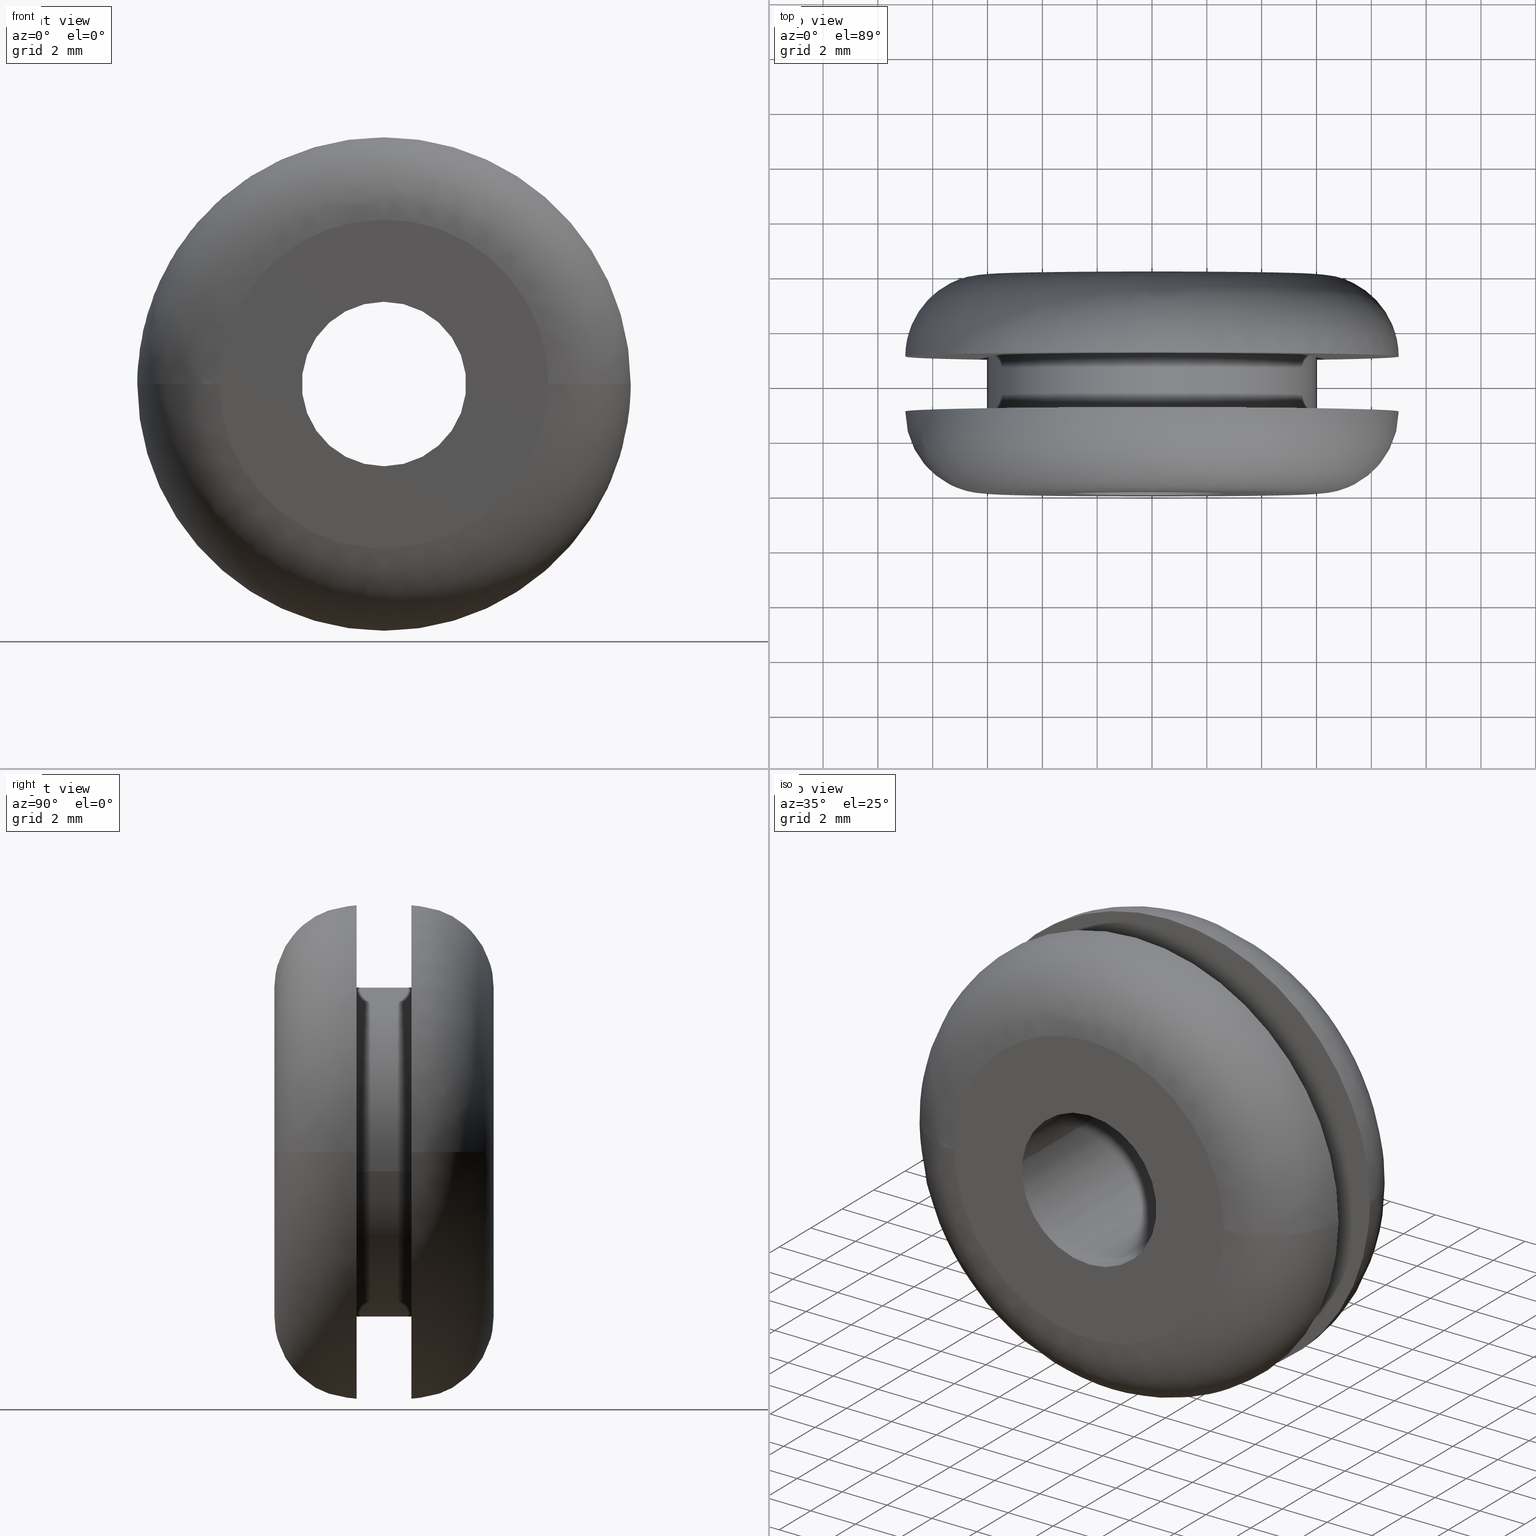
[diagram: canonical four-view strip — front | top / right | iso, engineering-drawing reading convention]
A machine part, canonical four-view strip (front | top / right | iso — engineering-drawing reading convention). The complete STEP part file that produces these views, byte-faithful:
ISO-10303-21;
HEADER;

FILE_DESCRIPTION( (''), '2;1');
FILE_NAME ('PC50.12492.TM_B_6_2_CRUL_3319.stp','2019-12-19T13:36:55',(''),(''),'spGate 15.6.1','','');

FILE_SCHEMA (('AUTOMOTIVE_DESIGN'));
ENDSEC;

DATA;
#10=(GEOMETRIC_REPRESENTATION_CONTEXT(3) GLOBAL_UNCERTAINTY_ASSIGNED_CONTEXT((#11)) GLOBAL_UNIT_ASSIGNED_CONTEXT((#12,#13,#14)) REPRESENTATION_CONTEXT('ID1','3D'));
#11=UNCERTAINTY_MEASURE_WITH_UNIT(LENGTH_MEASURE(0.01),#15,'DISTANCE_ACCURACY_VALUE','Maximum model space distance between geometric entities at asserted connectivities');
#12=(NAMED_UNIT(*) SI_UNIT($,.STERADIAN.) SOLID_ANGLE_UNIT());
#13=(CONVERSION_BASED_UNIT('DEGREE',#16) NAMED_UNIT(#17) PLANE_ANGLE_UNIT());
#14=(LENGTH_UNIT() NAMED_UNIT(*) SI_UNIT(.MILLI.,.METRE.));
#15=(LENGTH_UNIT() NAMED_UNIT(*) SI_UNIT(.MILLI.,.METRE.));
#16=PLANE_ANGLE_MEASURE_WITH_UNIT(PLANE_ANGLE_MEASURE(0.01745329252),#18);
#17=DIMENSIONAL_EXPONENTS(0.0,0.0,0.0,0.0,0.0,0.0,0.0);
#18=(NAMED_UNIT(*) PLANE_ANGLE_UNIT() SI_UNIT($,.RADIAN.));
#19=MANIFOLD_SOLID_BREP('TM_B_6_2',#31);
#20=ADVANCED_BREP_SHAPE_REPRESENTATION('',(#19),#10);
#21=APPLICATION_CONTEXT('');
#22=APPLICATION_PROTOCOL_DEFINITION('International Standard','automotive_design',1999,#21);
#23=PRODUCT_DEFINITION_CONTEXT('',#21,'design');
#24=PRODUCT_CONTEXT('',#21,'mechanical');
#25=PRODUCT('','','',(#24));
#26=PRODUCT_DEFINITION_FORMATION_WITH_SPECIFIED_SOURCE('','',#25,.NOT_KNOWN.);
#27=PRODUCT_RELATED_PRODUCT_CATEGORY('tool','tool',(#25));
#28=PRODUCT_DEFINITION('','',#26,#23);
#29=PRODUCT_DEFINITION_SHAPE('','',#28);
#30=SHAPE_DEFINITION_REPRESENTATION(#29,#20);
#31=CLOSED_SHELL('',(#40,#41,#42,#43,#44,#45,#46,#47,#48,#49,#50,#51));
#32=COLOUR_RGB('',0.00000000000E+000,0.00000000000E+000,0.00000000000E+000);
#33=FILL_AREA_STYLE_COLOUR('',#32);
#34=FILL_AREA_STYLE('',(#33));
#35=SURFACE_STYLE_FILL_AREA(#34);
#36=SURFACE_SIDE_STYLE('',(#35));
#37=SURFACE_STYLE_USAGE(.BOTH.,#36);
#38=PRESENTATION_STYLE_ASSIGNMENT((#37));
#39=STYLED_ITEM('',(#38),#19);
#40=ADVANCED_FACE('',(#53,#54),#52,.F.);
#41=ADVANCED_FACE('',(#64,#65),#63,.F.);
#42=ADVANCED_FACE('',(#75,#76),#74,.F.);
#43=ADVANCED_FACE('',(#86,#87),#85,.F.);
#44=ADVANCED_FACE('',(#97),#96,.T.);
#45=ADVANCED_FACE('',(#107),#106,.T.);
#46=ADVANCED_FACE('',(#117),#116,.F.);
#47=ADVANCED_FACE('',(#127),#126,.F.);
#48=ADVANCED_FACE('',(#137),#136,.T.);
#49=ADVANCED_FACE('',(#147),#146,.T.);
#50=ADVANCED_FACE('',(#157),#156,.T.);
#51=ADVANCED_FACE('',(#167),#166,.T.);
#52=PLANE('',#179);
#53=FACE_OUTER_BOUND('',#180,.T.);
#54=FACE_BOUND('',#181,.T.);
#55=COLOUR_RGB('',1.00000000000E+000,1.00000000000E+000,1.00000000000E+000);
#56=FILL_AREA_STYLE_COLOUR('',#55);
#57=FILL_AREA_STYLE('',(#56));
#58=SURFACE_STYLE_FILL_AREA(#57);
#59=SURFACE_SIDE_STYLE('',(#58));
#60=SURFACE_STYLE_USAGE(.BOTH.,#59);
#61=PRESENTATION_STYLE_ASSIGNMENT((#60));
#62=STYLED_ITEM('',(#61),#40);
#63=PLANE('',#185);
#64=FACE_OUTER_BOUND('',#186,.T.);
#65=FACE_BOUND('',#187,.T.);
#66=COLOUR_RGB('',1.00000000000E+000,1.00000000000E+000,1.00000000000E+000);
#67=FILL_AREA_STYLE_COLOUR('',#66);
#68=FILL_AREA_STYLE('',(#67));
#69=SURFACE_STYLE_FILL_AREA(#68);
#70=SURFACE_SIDE_STYLE('',(#69));
#71=SURFACE_STYLE_USAGE(.BOTH.,#70);
#72=PRESENTATION_STYLE_ASSIGNMENT((#71));
#73=STYLED_ITEM('',(#72),#41);
#74=PLANE('',#191);
#75=FACE_OUTER_BOUND('',#192,.T.);
#76=FACE_BOUND('',#193,.T.);
#77=COLOUR_RGB('',1.00000000000E+000,1.00000000000E+000,1.00000000000E+000);
#78=FILL_AREA_STYLE_COLOUR('',#77);
#79=FILL_AREA_STYLE('',(#78));
#80=SURFACE_STYLE_FILL_AREA(#79);
#81=SURFACE_SIDE_STYLE('',(#80));
#82=SURFACE_STYLE_USAGE(.BOTH.,#81);
#83=PRESENTATION_STYLE_ASSIGNMENT((#82));
#84=STYLED_ITEM('',(#83),#42);
#85=PLANE('',#197);
#86=FACE_OUTER_BOUND('',#198,.T.);
#87=FACE_BOUND('',#199,.T.);
#88=COLOUR_RGB('',1.00000000000E+000,1.00000000000E+000,1.00000000000E+000);
#89=FILL_AREA_STYLE_COLOUR('',#88);
#90=FILL_AREA_STYLE('',(#89));
#91=SURFACE_STYLE_FILL_AREA(#90);
#92=SURFACE_SIDE_STYLE('',(#91));
#93=SURFACE_STYLE_USAGE(.BOTH.,#92);
#94=PRESENTATION_STYLE_ASSIGNMENT((#93));
#95=STYLED_ITEM('',(#94),#43);
#96=CYLINDRICAL_SURFACE('',#203,6.00000000000E+000);
#97=FACE_OUTER_BOUND('',#204,.T.);
#98=COLOUR_RGB('',1.00000000000E+000,1.00000000000E+000,1.00000000000E+000);
#99=FILL_AREA_STYLE_COLOUR('',#98);
#100=FILL_AREA_STYLE('',(#99));
#101=SURFACE_STYLE_FILL_AREA(#100);
#102=SURFACE_SIDE_STYLE('',(#101));
#103=SURFACE_STYLE_USAGE(.BOTH.,#102);
#104=PRESENTATION_STYLE_ASSIGNMENT((#103));
#105=STYLED_ITEM('',(#104),#44);
#106=CYLINDRICAL_SURFACE('',#208,6.00000000000E+000);
#107=FACE_OUTER_BOUND('',#209,.T.);
#108=COLOUR_RGB('',1.00000000000E+000,1.00000000000E+000,1.00000000000E+000);
#109=FILL_AREA_STYLE_COLOUR('',#108);
#110=FILL_AREA_STYLE('',(#109));
#111=SURFACE_STYLE_FILL_AREA(#110);
#112=SURFACE_SIDE_STYLE('',(#111));
#113=SURFACE_STYLE_USAGE(.BOTH.,#112);
#114=PRESENTATION_STYLE_ASSIGNMENT((#113));
#115=STYLED_ITEM('',(#114),#45);
#116=CYLINDRICAL_SURFACE('',#213,3.00000000000E+000);
#117=FACE_OUTER_BOUND('',#214,.T.);
#118=COLOUR_RGB('',1.00000000000E+000,1.00000000000E+000,1.00000000000E+000);
#119=FILL_AREA_STYLE_COLOUR('',#118);
#120=FILL_AREA_STYLE('',(#119));
#121=SURFACE_STYLE_FILL_AREA(#120);
#122=SURFACE_SIDE_STYLE('',(#121));
#123=SURFACE_STYLE_USAGE(.BOTH.,#122);
#124=PRESENTATION_STYLE_ASSIGNMENT((#123));
#125=STYLED_ITEM('',(#124),#46);
#126=CYLINDRICAL_SURFACE('',#218,3.00000000000E+000);
#127=FACE_OUTER_BOUND('',#219,.T.);
#128=COLOUR_RGB('',1.00000000000E+000,1.00000000000E+000,1.00000000000E+000);
#129=FILL_AREA_STYLE_COLOUR('',#128);
#130=FILL_AREA_STYLE('',(#129));
#131=SURFACE_STYLE_FILL_AREA(#130);
#132=SURFACE_SIDE_STYLE('',(#131));
#133=SURFACE_STYLE_USAGE(.BOTH.,#132);
#134=PRESENTATION_STYLE_ASSIGNMENT((#133));
#135=STYLED_ITEM('',(#134),#47);
#136=( BOUNDED_SURFACE() B_SPLINE_SURFACE( 2,2,((#220,#221,#222,#223,#224),(#225,#226,#227,#228,#229),(#230,#231,#232,#233,#234),(#235,#236,#237,#238,#239),(#240,#241,#242,#243,#244)), .UNSPECIFIED.,.F.,.F.,.F.) B_SPLINE_SURFACE_WITH_KNOTS((3,2,3),(3,2,3),(-2.33173204921E-004,1.04711982679E+000,1.57079638809E+000),(0.00000000000E+000,1.57079632679E+000,3.14159265359E+000), .UNSPECIFIED. ) GEOMETRIC_REPRESENTATION_ITEM() RATIONAL_B_SPLINE_SURFACE(((1.00000000000E+000,7.07106781187E-001,1.00000000000E+000,7.07106781187E-001,1.00000000000E+000),(8.65986538968E-001,6.12344954120E-001,8.65986538968E-001,6.12344954120E-001,8.65986538968E-001),(1.00000000000E+000,7.07106781187E-001,1.00000000000E+000,7.07106781187E-001,1.00000000000E+000),(9.32993261640E-001,6.59725862107E-001,9.32993261640E-001,6.59725862107E-001,9.32993261640E-001),(9.32993269484E-001,6.59725867653E-001,9.32993269484E-001,6.59725867653E-001,9.32993269484E-001))) REPRESENTATION_ITEM('') SURFACE() );
#137=FACE_OUTER_BOUND('',#245,.T.);
#138=COLOUR_RGB('',1.00000000000E+000,1.00000000000E+000,1.00000000000E+000);
#139=FILL_AREA_STYLE_COLOUR('',#138);
#140=FILL_AREA_STYLE('',(#139));
#141=SURFACE_STYLE_FILL_AREA(#140);
#142=SURFACE_SIDE_STYLE('',(#141));
#143=SURFACE_STYLE_USAGE(.BOTH.,#142);
#144=PRESENTATION_STYLE_ASSIGNMENT((#143));
#145=STYLED_ITEM('',(#144),#48);
#146=( BOUNDED_SURFACE() B_SPLINE_SURFACE( 2,2,((#246,#247,#248,#249,#250),(#251,#252,#253,#254,#255),(#256,#257,#258,#259,#260),(#261,#262,#263,#264,#265),(#266,#267,#268,#269,#270)), .UNSPECIFIED.,.F.,.F.,.F.) B_SPLINE_SURFACE_WITH_KNOTS((3,2,3),(3,2,3),(-2.33173204921E-004,1.04711982679E+000,1.57079651069E+000),(3.14159265359E+000,4.71238898038E+000,6.28318530718E+000), .UNSPECIFIED. ) GEOMETRIC_REPRESENTATION_ITEM() RATIONAL_B_SPLINE_SURFACE(((1.00000000000E+000,7.07106781187E-001,1.00000000000E+000,7.07106781187E-001,1.00000000000E+000),(8.65986538968E-001,6.12344954120E-001,8.65986538968E-001,6.12344954120E-001,8.65986538968E-001),(1.00000000000E+000,7.07106781187E-001,1.00000000000E+000,7.07106781187E-001,1.00000000000E+000),(9.32993245953E-001,6.59725851015E-001,9.32993245953E-001,6.59725851015E-001,9.32993245953E-001),(9.32993269484E-001,6.59725867653E-001,9.32993269484E-001,6.59725867653E-001,9.32993269484E-001))) REPRESENTATION_ITEM('') SURFACE() );
#147=FACE_OUTER_BOUND('',#271,.T.);
#148=COLOUR_RGB('',1.00000000000E+000,1.00000000000E+000,1.00000000000E+000);
#149=FILL_AREA_STYLE_COLOUR('',#148);
#150=FILL_AREA_STYLE('',(#149));
#151=SURFACE_STYLE_FILL_AREA(#150);
#152=SURFACE_SIDE_STYLE('',(#151));
#153=SURFACE_STYLE_USAGE(.BOTH.,#152);
#154=PRESENTATION_STYLE_ASSIGNMENT((#153));
#155=STYLED_ITEM('',(#154),#49);
#156=( BOUNDED_SURFACE() B_SPLINE_SURFACE( 2,2,((#272,#273,#274,#275,#276),(#277,#278,#279,#280,#281),(#282,#283,#284,#285,#286),(#287,#288,#289,#290,#291),(#292,#293,#294,#295,#296)), .UNSPECIFIED.,.F.,.F.,.F.) B_SPLINE_SURFACE_WITH_KNOTS((3,2,3),(3,2,3),(-1.57079651073E+000,-1.04709932886E+000,2.94667014920E-004),(0.00000000000E+000,1.57079632679E+000,3.14159265359E+000), .UNSPECIFIED. ) GEOMETRIC_REPRESENTATION_ITEM() RATIONAL_B_SPLINE_SURFACE(((9.32988144219E-001,6.59722243544E-001,9.32988144219E-001,6.59722243544E-001,9.32988144219E-001),(9.32988120683E-001,6.59722226901E-001,9.32988120683E-001,6.59722226901E-001,9.32988120683E-001),(1.00000000000E+000,7.07106781187E-001,1.00000000000E+000,7.07106781187E-001,1.00000000000E+000),(8.65976288438E-001,6.12337705901E-001,8.65976288438E-001,6.12337705901E-001,8.65976288438E-001),(1.00000000000E+000,7.07106781187E-001,1.00000000000E+000,7.07106781187E-001,1.00000000000E+000))) REPRESENTATION_ITEM('') SURFACE() );
#157=FACE_OUTER_BOUND('',#297,.T.);
#158=COLOUR_RGB('',1.00000000000E+000,1.00000000000E+000,1.00000000000E+000);
#159=FILL_AREA_STYLE_COLOUR('',#158);
#160=FILL_AREA_STYLE('',(#159));
#161=SURFACE_STYLE_FILL_AREA(#160);
#162=SURFACE_SIDE_STYLE('',(#161));
#163=SURFACE_STYLE_USAGE(.BOTH.,#162);
#164=PRESENTATION_STYLE_ASSIGNMENT((#163));
#165=STYLED_ITEM('',(#164),#50);
#166=( BOUNDED_SURFACE() B_SPLINE_SURFACE( 2,2,((#298,#299,#300,#301,#302),(#303,#304,#305,#306,#307),(#308,#309,#310,#311,#312),(#313,#314,#315,#316,#317),(#318,#319,#320,#321,#322)), .UNSPECIFIED.,.F.,.F.,.F.) B_SPLINE_SURFACE_WITH_KNOTS((3,2,3),(3,2,3),(-1.57079651073E+000,-1.04709932886E+000,2.94667014920E-004),(3.14159265359E+000,4.71238898038E+000,6.28318530718E+000), .UNSPECIFIED. ) GEOMETRIC_REPRESENTATION_ITEM() RATIONAL_B_SPLINE_SURFACE(((9.32988144219E-001,6.59722243544E-001,9.32988144219E-001,6.59722243544E-001,9.32988144219E-001),(9.32988120683E-001,6.59722226901E-001,9.32988120683E-001,6.59722226901E-001,9.32988120683E-001),(1.00000000000E+000,7.07106781187E-001,1.00000000000E+000,7.07106781187E-001,1.00000000000E+000),(8.65976288438E-001,6.12337705901E-001,8.65976288438E-001,6.12337705901E-001,8.65976288438E-001),(1.00000000000E+000,7.07106781187E-001,1.00000000000E+000,7.07106781187E-001,1.00000000000E+000))) REPRESENTATION_ITEM('') SURFACE() );
#167=FACE_OUTER_BOUND('',#323,.T.);
#168=COLOUR_RGB('',1.00000000000E+000,1.00000000000E+000,1.00000000000E+000);
#169=FILL_AREA_STYLE_COLOUR('',#168);
#170=FILL_AREA_STYLE('',(#169));
#171=SURFACE_STYLE_FILL_AREA(#170);
#172=SURFACE_SIDE_STYLE('',(#171));
#173=SURFACE_STYLE_USAGE(.BOTH.,#172);
#174=PRESENTATION_STYLE_ASSIGNMENT((#173));
#175=STYLED_ITEM('',(#174),#51);
#176=CARTESIAN_POINT('',(-1.09106769926E+001,5.00000000000E+000,-1.08000000000E+001));
#177=DIRECTION('',(0.00000000000E+000,1.00000000000E+000,0.00000000000E+000));
#178=DIRECTION('',(0.00000000000E+000,0.00000000000E+000,1.00000000000E+000));
#179=AXIS2_PLACEMENT_3D('',#176,#177,#178);
#180=EDGE_LOOP('',(#324,#325,#326,#327,#328));
#181=EDGE_LOOP('',(#329,#330,#331));
#182=CARTESIAN_POINT('',(-1.24707658153E+001,8.00000000000E+000,1.38000000005E+001));
#183=DIRECTION('',(0.00000000000E+000,-1.00000000000E+000,0.00000000000E+000));
#184=DIRECTION('',(0.00000000000E+000,0.00000000000E+000,-1.00000000000E+000));
#185=AXIS2_PLACEMENT_3D('',#182,#183,#184);
#186=EDGE_LOOP('',(#332,#333,#334));
#187=EDGE_LOOP('',(#335,#336,#337));
#188=CARTESIAN_POINT('',(-1.15275832583E+001,3.00000000000E+000,1.08000000000E+001));
#189=DIRECTION('',(0.00000000000E+000,-1.00000000000E+000,0.00000000000E+000));
#190=DIRECTION('',(0.00000000000E+000,0.00000000000E+000,-1.00000000000E+000));
#191=AXIS2_PLACEMENT_3D('',#188,#189,#190);
#192=EDGE_LOOP('',(#338,#339,#340,#341,#342,#343));
#193=EDGE_LOOP('',(#344,#345,#346));
#194=CARTESIAN_POINT('',(-1.24707658146E+001,-9.41670200000E-016,-1.38000000001E+001));
#195=DIRECTION('',(0.00000000000E+000,1.00000000000E+000,0.00000000000E+000));
#196=DIRECTION('',(0.00000000000E+000,0.00000000000E+000,1.00000000000E+000));
#197=AXIS2_PLACEMENT_3D('',#194,#195,#196);
#198=EDGE_LOOP('',(#347,#348,#349));
#199=EDGE_LOOP('',(#350,#351,#352));
#200=CARTESIAN_POINT('',(1.02385100091E-015,5.05000000000E+000,5.00238967592E-015));
#201=DIRECTION('',(6.32731223210E-016,1.00000000000E+000,5.95016354896E-015));
#202=DIRECTION('',(-9.93009526364E-001,-7.40148683084E-017,1.18034234657E-001));
#203=AXIS2_PLACEMENT_3D('',#200,#201,#202);
#204=EDGE_LOOP('',(#353,#354,#355,#356));
#205=CARTESIAN_POINT('',(1.02385100091E-015,5.05000000000E+000,5.00238967592E-015));
#206=DIRECTION('',(6.32731223210E-016,1.00000000000E+000,5.95016354896E-015));
#207=DIRECTION('',(-9.93009526364E-001,-7.40148683084E-017,1.18034234657E-001));
#208=AXIS2_PLACEMENT_3D('',#205,#206,#207);
#209=EDGE_LOOP('',(#357,#358,#359,#360,#361,#362));
#210=CARTESIAN_POINT('',(5.42003842924E-015,8.20000000000E+000,4.48206038936E-014));
#211=DIRECTION('',(1.12728726745E-015,1.00000000000E+000,1.07378739382E-014));
#212=DIRECTION('',(-9.93009526364E-001,-1.48029736617E-016,1.18034234657E-001));
#213=AXIS2_PLACEMENT_3D('',#210,#211,#212);
#214=EDGE_LOOP('',(#363,#364,#365,#366));
#215=CARTESIAN_POINT('',(5.42003842924E-015,8.20000000000E+000,4.48206038936E-014));
#216=DIRECTION('',(1.12728726745E-015,1.00000000000E+000,1.07378739382E-014));
#217=DIRECTION('',(-9.93009526364E-001,-1.48029736617E-016,1.18034234657E-001));
#218=AXIS2_PLACEMENT_3D('',#215,#216,#217);
#219=EDGE_LOOP('',(#367,#368,#369,#370,#371,#372));
#220=CARTESIAN_POINT('',(-8.99999991845E+000,3.00069951961E+000,7.40643813226E-014));
#221=CARTESIAN_POINT('',(-8.99999991845E+000,3.00069951961E+000,8.99999991845E+000));
#222=CARTESIAN_POINT('',(-1.58410126141E-013,3.00069951961E+000,8.99999991845E+000));
#223=CARTESIAN_POINT('',(8.99999991845E+000,3.00069951961E+000,8.99999991845E+000));
#224=CARTESIAN_POINT('',(8.99999991845E+000,3.00069951961E+000,7.18600899057E-014));
#225=CARTESIAN_POINT('',(-9.00040385878E+000,1.26833784757E+000,8.53835161358E-014));
#226=CARTESIAN_POINT('',(-9.00040385878E+000,1.26833784757E+000,9.00040385878E+000));
#227=CARTESIAN_POINT('',(-3.62196321123E-013,1.26833784757E+000,9.00040385878E+000));
#228=CARTESIAN_POINT('',(9.00040385878E+000,1.26833784757E+000,9.00040385878E+000));
#229=CARTESIAN_POINT('',(9.00040385878E+000,1.26833784757E+000,8.31791257853E-014));
#230=CARTESIAN_POINT('',(-7.50020192939E+000,4.02040383097E-001,9.08601051667E-014));
#231=CARTESIAN_POINT('',(-7.50020192939E+000,4.02040383097E-001,7.50020192939E+000));
#232=CARTESIAN_POINT('',(-4.64286878610E-013,4.02040383096E-001,7.50020192939E+000));
#233=CARTESIAN_POINT('',(7.50020192939E+000,4.02040383095E-001,7.50020192939E+000));
#234=CARTESIAN_POINT('',(7.50020192939E+000,4.02040383095E-001,8.90231461792E-014));
#235=CARTESIAN_POINT('',(-6.80397244839E+000,-5.04412534093E-008,9.34017381722E-014));
#236=CARTESIAN_POINT('',(-6.80397244839E+000,-5.04412089825E-008,6.80397244839E+000));
#237=CARTESIAN_POINT('',(-5.11666137670E-013,-5.04420093600E-008,6.80397244839E+000));
#238=CARTESIAN_POINT('',(6.80397244839E+000,-5.04428097985E-008,6.80397244839E+000));
#239=CARTESIAN_POINT('',(6.80397244839E+000,-5.04428542304E-008,9.17353005939E-014));
#240=CARTESIAN_POINT('',(-5.99999981178E+000,5.48799077621E-015,9.33032828428E-014));
#241=CARTESIAN_POINT('',(-5.99999981178E+000,4.46732493424E-014,5.99999981178E+000));
#242=CARTESIAN_POINT('',(-5.11764586736E-013,-6.61111727777E-013,5.99999981178E+000));
#243=CARTESIAN_POINT('',(5.99999981178E+000,-1.36694763697E-012,5.99999981178E+000));
#244=CARTESIAN_POINT('',(5.99999981178E+000,-1.40612969281E-012,9.18337552643E-014));
#245=EDGE_LOOP('',(#373,#374,#375,#376,#377,#378,#379));
#246=CARTESIAN_POINT('',(8.99999991845E+000,3.00069951961E+000,7.18600899057E-014));
#247=CARTESIAN_POINT('',(8.99999991845E+000,3.00069951961E+000,-8.99999991845E+000));
#248=CARTESIAN_POINT('',(-1.60614417558E-013,3.00069951961E+000,-8.99999991845E+000));
#249=CARTESIAN_POINT('',(-8.99999991845E+000,3.00069951961E+000,-8.99999991845E+000));
#250=CARTESIAN_POINT('',(-8.99999991845E+000,3.00069951961E+000,7.40643813226E-014));
#251=CARTESIAN_POINT('',(9.00040385878E+000,1.26833784757E+000,8.31791257853E-014));
#252=CARTESIAN_POINT('',(9.00040385878E+000,1.26833784757E+000,-9.00040385878E+000));
#253=CARTESIAN_POINT('',(-3.64400711474E-013,1.26833784757E+000,-9.00040385878E+000));
#254=CARTESIAN_POINT('',(-9.00040385878E+000,1.26833784757E+000,-9.00040385878E+000));
#255=CARTESIAN_POINT('',(-9.00040385878E+000,1.26833784757E+000,8.53835161358E-014));
#256=CARTESIAN_POINT('',(7.50020192939E+000,4.02040383095E-001,8.90231461792E-014));
#257=CARTESIAN_POINT('',(7.50020192939E+000,4.02040383095E-001,-7.50020192939E+000));
#258=CARTESIAN_POINT('',(-4.66123837598E-013,4.02040383096E-001,-7.50020192939E+000));
#259=CARTESIAN_POINT('',(-7.50020192939E+000,4.02040383097E-001,-7.50020192939E+000));
#260=CARTESIAN_POINT('',(-7.50020192939E+000,4.02040383097E-001,9.08601051667E-014));
#261=CARTESIAN_POINT('',(6.80397227368E+000,-1.51325523643E-007,9.17353012745E-014));
#262=CARTESIAN_POINT('',(6.80397227368E+000,-1.51325568099E-007,-6.80397227368E+000));
#263=CARTESIAN_POINT('',(-5.13332587094E-013,-1.51324767692E-007,-6.80397227368E+000));
#264=CARTESIAN_POINT('',(-6.80397227369E+000,-1.51323967325E-007,-6.80397227368E+000));
#265=CARTESIAN_POINT('',(-6.80397227369E+000,-1.51323922822E-007,9.34017388100E-014));
#266=CARTESIAN_POINT('',(5.99999943534E+000,-1.35889379279E-012,9.18337553104E-014));
#267=CARTESIAN_POINT('',(5.99999943534E+000,-1.39809070962E-012,-5.99999943534E+000));
#268=CARTESIAN_POINT('',(-5.13234114268E-013,-6.92294095154E-013,-5.99999943534E+000));
#269=CARTESIAN_POINT('',(-5.99999943534E+000,1.34880610154E-014,-5.99999943534E+000));
#270=CARTESIAN_POINT('',(-5.99999943534E+000,5.27238465058E-014,9.33032827967E-014));
#271=EDGE_LOOP('',(#380,#381,#382,#383,#384,#385));
#272=CARTESIAN_POINT('',(-5.99999943523E+000,8.00000000000E+000,-1.52965230442E-014));
#273=CARTESIAN_POINT('',(-5.99999943523E+000,8.00000000000E+000,5.99999943523E+000));
#274=CARTESIAN_POINT('',(2.26816266427E-014,8.00000000000E+000,5.99999943523E+000));
#275=CARTESIAN_POINT('',(5.99999943523E+000,8.00000000000E+000,5.99999943523E+000));
#276=CARTESIAN_POINT('',(5.99999943523E+000,8.00000000000E+000,-1.67660505305E-014));
#277=CARTESIAN_POINT('',(-6.80400522884E+000,8.00000015136E+000,-1.51980624187E-014));
#278=CARTESIAN_POINT('',(-6.80400522884E+000,8.00000015136E+000,6.80400522884E+000));
#279=CARTESIAN_POINT('',(2.27800722378E-014,8.00000015136E+000,6.80400522884E+000));
#280=CARTESIAN_POINT('',(6.80400522884E+000,8.00000015136E+000,6.80400522884E+000));
#281=CARTESIAN_POINT('',(6.80400522884E+000,8.00000015136E+000,-1.68645080256E-014));
#282=CARTESIAN_POINT('',(-7.50025518188E+000,7.59792886531E+000,-1.92706301029E-014));
#283=CARTESIAN_POINT('',(-7.50025518188E+000,7.59792886531E+000,7.50025518188E+000));
#284=CARTESIAN_POINT('',(5.86342130093E-014,7.59792886531E+000,7.50025518188E+000));
#285=CARTESIAN_POINT('',(7.50025518188E+000,7.59792886531E+000,7.50025518188E+000));
#286=CARTESIAN_POINT('',(7.50025518188E+000,7.59792886531E+000,-2.11076021331E-014));
#287=CARTESIAN_POINT('',(-9.00051036377E+000,6.73155964296E+000,-2.80460572971E-014));
#288=CARTESIAN_POINT('',(-9.00051036377E+000,6.73155964296E+000,9.00051036377E+000));
#289=CARTESIAN_POINT('',(1.35891468467E-013,6.73155964296E+000,9.00051036377E+000));
#290=CARTESIAN_POINT('',(9.00051036377E+000,6.73155964296E+000,9.00051036377E+000));
#291=CARTESIAN_POINT('',(9.00051036377E+000,6.73155964296E+000,-3.02504737330E-014));
#292=CARTESIAN_POINT('',(-8.99999986976E+000,4.99911599897E+000,-4.59613700638E-014));
#293=CARTESIAN_POINT('',(-8.99999986976E+000,4.99911599897E+000,8.99999986976E+000));
#294=CARTESIAN_POINT('',(2.90012246539E-013,4.99911599897E+000,8.99999986976E+000));
#295=CARTESIAN_POINT('',(8.99999986976E+000,4.99911599897E+000,8.99999986976E+000));
#296=CARTESIAN_POINT('',(8.99999986976E+000,4.99911599897E+000,-4.81656614688E-014));
#297=EDGE_LOOP('',(#386,#387,#388,#389,#390));
#298=CARTESIAN_POINT('',(5.99999943523E+000,8.00000000000E+000,-1.67660505305E-014));
#299=CARTESIAN_POINT('',(5.99999943523E+000,8.00000000000E+000,-5.99999943523E+000));
#300=CARTESIAN_POINT('',(2.12120991564E-014,8.00000000000E+000,-5.99999943523E+000));
#301=CARTESIAN_POINT('',(-5.99999943523E+000,8.00000000000E+000,-5.99999943523E+000));
#302=CARTESIAN_POINT('',(-5.99999943523E+000,8.00000000000E+000,-1.52965230442E-014));
#303=CARTESIAN_POINT('',(6.80400522884E+000,8.00000015136E+000,-1.68645080256E-014));
#304=CARTESIAN_POINT('',(6.80400522884E+000,8.00000015136E+000,-6.80400522884E+000));
#305=CARTESIAN_POINT('',(2.11136266308E-014,8.00000015136E+000,-6.80400522884E+000));
#306=CARTESIAN_POINT('',(-6.80400522884E+000,8.00000015136E+000,-6.80400522884E+000));
#307=CARTESIAN_POINT('',(-6.80400522884E+000,8.00000015136E+000,-1.51980624187E-014));
#308=CARTESIAN_POINT('',(7.50025518188E+000,7.59792886531E+000,-2.11076021331E-014));
#309=CARTESIAN_POINT('',(7.50025518188E+000,7.59792886531E+000,-7.50025518188E+000));
#310=CARTESIAN_POINT('',(5.67972409791E-014,7.59792886531E+000,-7.50025518188E+000));
#311=CARTESIAN_POINT('',(-7.50025518188E+000,7.59792886531E+000,-7.50025518188E+000));
#312=CARTESIAN_POINT('',(-7.50025518188E+000,7.59792886531E+000,-1.92706301029E-014));
#313=CARTESIAN_POINT('',(9.00051036377E+000,6.73155964296E+000,-3.02504737330E-014));
#314=CARTESIAN_POINT('',(9.00051036377E+000,6.73155964296E+000,-9.00051036377E+000));
#315=CARTESIAN_POINT('',(1.33687052031E-013,6.73155964296E+000,-9.00051036377E+000));
#316=CARTESIAN_POINT('',(-9.00051036377E+000,6.73155964296E+000,-9.00051036377E+000));
#317=CARTESIAN_POINT('',(-9.00051036377E+000,6.73155964296E+000,-2.80460572971E-014));
#318=CARTESIAN_POINT('',(8.99999986976E+000,4.99911599897E+000,-4.81656614688E-014));
#319=CARTESIAN_POINT('',(8.99999986976E+000,4.99911599897E+000,-8.99999986976E+000));
#320=CARTESIAN_POINT('',(2.87807955134E-013,4.99911599897E+000,-8.99999986976E+000));
#321=CARTESIAN_POINT('',(-8.99999986976E+000,4.99911599897E+000,-8.99999986976E+000));
#322=CARTESIAN_POINT('',(-8.99999986976E+000,4.99911599897E+000,-4.59613700638E-014));
#323=EDGE_LOOP('',(#391,#392,#393,#394,#395,#396,#397));
#324=ORIENTED_EDGE('',*,*,#398,.T.);
#325=ORIENTED_EDGE('',*,*,#399,.T.);
#326=ORIENTED_EDGE('',*,*,#400,.T.);
#327=ORIENTED_EDGE('',*,*,#401,.T.);
#328=ORIENTED_EDGE('',*,*,#402,.T.);
#329=ORIENTED_EDGE('',*,*,#403,.F.);
#330=ORIENTED_EDGE('',*,*,#404,.F.);
#331=ORIENTED_EDGE('',*,*,#405,.F.);
#332=ORIENTED_EDGE('',*,*,#406,.F.);
#333=ORIENTED_EDGE('',*,*,#407,.F.);
#334=ORIENTED_EDGE('',*,*,#408,.F.);
#335=ORIENTED_EDGE('',*,*,#409,.T.);
#336=ORIENTED_EDGE('',*,*,#410,.T.);
#337=ORIENTED_EDGE('',*,*,#411,.T.);
#338=ORIENTED_EDGE('',*,*,#412,.F.);
#339=ORIENTED_EDGE('',*,*,#413,.F.);
#340=ORIENTED_EDGE('',*,*,#414,.F.);
#341=ORIENTED_EDGE('',*,*,#415,.F.);
#342=ORIENTED_EDGE('',*,*,#416,.F.);
#343=ORIENTED_EDGE('',*,*,#417,.F.);
#344=ORIENTED_EDGE('',*,*,#418,.T.);
#345=ORIENTED_EDGE('',*,*,#419,.T.);
#346=ORIENTED_EDGE('',*,*,#420,.T.);
#347=ORIENTED_EDGE('',*,*,#421,.T.);
#348=ORIENTED_EDGE('',*,*,#422,.T.);
#349=ORIENTED_EDGE('',*,*,#423,.T.);
#350=ORIENTED_EDGE('',*,*,#424,.F.);
#351=ORIENTED_EDGE('',*,*,#425,.F.);
#352=ORIENTED_EDGE('',*,*,#426,.F.);
#353=ORIENTED_EDGE('',*,*,#404,.T.);
#354=ORIENTED_EDGE('',*,*,#427,.F.);
#355=ORIENTED_EDGE('',*,*,#419,.F.);
#356=ORIENTED_EDGE('',*,*,#428,.T.);
#357=ORIENTED_EDGE('',*,*,#418,.F.);
#358=ORIENTED_EDGE('',*,*,#420,.F.);
#359=ORIENTED_EDGE('',*,*,#427,.T.);
#360=ORIENTED_EDGE('',*,*,#403,.T.);
#361=ORIENTED_EDGE('',*,*,#405,.T.);
#362=ORIENTED_EDGE('',*,*,#428,.F.);
#363=ORIENTED_EDGE('',*,*,#425,.T.);
#364=ORIENTED_EDGE('',*,*,#429,.T.);
#365=ORIENTED_EDGE('',*,*,#410,.F.);
#366=ORIENTED_EDGE('',*,*,#430,.F.);
#367=ORIENTED_EDGE('',*,*,#409,.F.);
#368=ORIENTED_EDGE('',*,*,#411,.F.);
#369=ORIENTED_EDGE('',*,*,#429,.F.);
#370=ORIENTED_EDGE('',*,*,#424,.T.);
#371=ORIENTED_EDGE('',*,*,#426,.T.);
#372=ORIENTED_EDGE('',*,*,#430,.T.);
#373=ORIENTED_EDGE('',*,*,#415,.T.);
#374=ORIENTED_EDGE('',*,*,#414,.T.);
#375=ORIENTED_EDGE('',*,*,#413,.T.);
#376=ORIENTED_EDGE('',*,*,#431,.T.);
#377=ORIENTED_EDGE('',*,*,#421,.F.);
#378=ORIENTED_EDGE('',*,*,#423,.F.);
#379=ORIENTED_EDGE('',*,*,#432,.F.);
#380=ORIENTED_EDGE('',*,*,#422,.F.);
#381=ORIENTED_EDGE('',*,*,#431,.F.);
#382=ORIENTED_EDGE('',*,*,#412,.T.);
#383=ORIENTED_EDGE('',*,*,#417,.T.);
#384=ORIENTED_EDGE('',*,*,#416,.T.);
#385=ORIENTED_EDGE('',*,*,#432,.T.);
#386=ORIENTED_EDGE('',*,*,#407,.T.);
#387=ORIENTED_EDGE('',*,*,#433,.T.);
#388=ORIENTED_EDGE('',*,*,#401,.F.);
#389=ORIENTED_EDGE('',*,*,#400,.F.);
#390=ORIENTED_EDGE('',*,*,#434,.F.);
#391=ORIENTED_EDGE('',*,*,#399,.F.);
#392=ORIENTED_EDGE('',*,*,#398,.F.);
#393=ORIENTED_EDGE('',*,*,#402,.F.);
#394=ORIENTED_EDGE('',*,*,#433,.F.);
#395=ORIENTED_EDGE('',*,*,#406,.T.);
#396=ORIENTED_EDGE('',*,*,#408,.T.);
#397=ORIENTED_EDGE('',*,*,#434,.T.);
#398=EDGE_CURVE('',#435,#436,#437,.T.);
#399=EDGE_CURVE('',#436,#443,#444,.T.);
#400=EDGE_CURVE('',#443,#450,#451,.T.);
#401=EDGE_CURVE('',#450,#457,#458,.T.);
#402=EDGE_CURVE('',#457,#435,#464,.T.);
#403=EDGE_CURVE('',#470,#471,#472,.T.);
#404=EDGE_CURVE('',#478,#470,#479,.T.);
#405=EDGE_CURVE('',#471,#478,#485,.T.);
#406=EDGE_CURVE('',#491,#492,#493,.T.);
#407=EDGE_CURVE('',#499,#491,#500,.T.);
#408=EDGE_CURVE('',#492,#499,#506,.T.);
#409=EDGE_CURVE('',#512,#513,#514,.T.);
#410=EDGE_CURVE('',#513,#520,#521,.T.);
#411=EDGE_CURVE('',#520,#512,#527,.T.);
#412=EDGE_CURVE('',#533,#534,#535,.T.);
#413=EDGE_CURVE('',#541,#533,#542,.T.);
#414=EDGE_CURVE('',#548,#541,#549,.T.);
#415=EDGE_CURVE('',#555,#548,#556,.T.);
#416=EDGE_CURVE('',#562,#555,#563,.T.);
#417=EDGE_CURVE('',#534,#562,#569,.T.);
#418=EDGE_CURVE('',#575,#576,#577,.T.);
#419=EDGE_CURVE('',#576,#583,#584,.T.);
#420=EDGE_CURVE('',#583,#575,#590,.T.);
#421=EDGE_CURVE('',#596,#597,#598,.T.);
#422=EDGE_CURVE('',#597,#604,#605,.T.);
#423=EDGE_CURVE('',#604,#596,#611,.T.);
#424=EDGE_CURVE('',#617,#618,#619,.T.);
#425=EDGE_CURVE('',#625,#617,#626,.T.);
#426=EDGE_CURVE('',#618,#625,#632,.T.);
#427=EDGE_CURVE('',#583,#470,#638,.T.);
#428=EDGE_CURVE('',#576,#478,#644,.T.);
#429=EDGE_CURVE('',#617,#520,#650,.T.);
#430=EDGE_CURVE('',#625,#513,#656,.T.);
#431=EDGE_CURVE('',#533,#597,#662,.T.);
#432=EDGE_CURVE('',#555,#604,#668,.T.);
#433=EDGE_CURVE('',#491,#457,#674,.T.);
#434=EDGE_CURVE('',#499,#443,#680,.T.);
#435=VERTEX_POINT('',#686);
#436=VERTEX_POINT('',#687);
#437=CIRCLE('',#691,8.99999999999E+000);
#438=COLOUR_RGB('',1.00000000000E+000,1.00000000000E+000,1.00000000000E+000);
#439=DRAUGHTING_PRE_DEFINED_CURVE_FONT('continuous');
#440=CURVE_STYLE( '',#439, POSITIVE_LENGTH_MEASURE(1.00000000000E-006),#438);
#441=PRESENTATION_STYLE_ASSIGNMENT((#440));
#442=STYLED_ITEM('',(#441),#398);
#443=VERTEX_POINT('',#692);
#444=CIRCLE('',#696,8.99999999999E+000);
#445=COLOUR_RGB('',1.00000000000E+000,1.00000000000E+000,1.00000000000E+000);
#446=DRAUGHTING_PRE_DEFINED_CURVE_FONT('continuous');
#447=CURVE_STYLE( '',#446, POSITIVE_LENGTH_MEASURE(1.00000000000E-006),#445);
#448=PRESENTATION_STYLE_ASSIGNMENT((#447));
#449=STYLED_ITEM('',(#448),#399);
#450=VERTEX_POINT('',#697);
#451=CIRCLE('',#701,8.99999999999E+000);
#452=COLOUR_RGB('',1.00000000000E+000,1.00000000000E+000,1.00000000000E+000);
#453=DRAUGHTING_PRE_DEFINED_CURVE_FONT('continuous');
#454=CURVE_STYLE( '',#453, POSITIVE_LENGTH_MEASURE(1.00000000000E-006),#452);
#455=PRESENTATION_STYLE_ASSIGNMENT((#454));
#456=STYLED_ITEM('',(#455),#400);
#457=VERTEX_POINT('',#702);
#458=CIRCLE('',#706,8.99999999999E+000);
#459=COLOUR_RGB('',1.00000000000E+000,1.00000000000E+000,1.00000000000E+000);
#460=DRAUGHTING_PRE_DEFINED_CURVE_FONT('continuous');
#461=CURVE_STYLE( '',#460, POSITIVE_LENGTH_MEASURE(1.00000000000E-006),#459);
#462=PRESENTATION_STYLE_ASSIGNMENT((#461));
#463=STYLED_ITEM('',(#462),#401);
#464=CIRCLE('',#710,8.99999999999E+000);
#465=COLOUR_RGB('',1.00000000000E+000,1.00000000000E+000,1.00000000000E+000);
#466=DRAUGHTING_PRE_DEFINED_CURVE_FONT('continuous');
#467=CURVE_STYLE( '',#466, POSITIVE_LENGTH_MEASURE(1.00000000000E-006),#465);
#468=PRESENTATION_STYLE_ASSIGNMENT((#467));
#469=STYLED_ITEM('',(#468),#402);
#470=VERTEX_POINT('',#711);
#471=VERTEX_POINT('',#712);
#472=CIRCLE('',#716,6.00000000000E+000);
#473=COLOUR_RGB('',1.00000000000E+000,1.00000000000E+000,1.00000000000E+000);
#474=DRAUGHTING_PRE_DEFINED_CURVE_FONT('continuous');
#475=CURVE_STYLE( '',#474, POSITIVE_LENGTH_MEASURE(1.00000000000E-006),#473);
#476=PRESENTATION_STYLE_ASSIGNMENT((#475));
#477=STYLED_ITEM('',(#476),#403);
#478=VERTEX_POINT('',#717);
#479=CIRCLE('',#721,6.00000000000E+000);
#480=COLOUR_RGB('',1.00000000000E+000,1.00000000000E+000,1.00000000000E+000);
#481=DRAUGHTING_PRE_DEFINED_CURVE_FONT('continuous');
#482=CURVE_STYLE( '',#481, POSITIVE_LENGTH_MEASURE(1.00000000000E-006),#480);
#483=PRESENTATION_STYLE_ASSIGNMENT((#482));
#484=STYLED_ITEM('',(#483),#404);
#485=CIRCLE('',#725,6.00000000000E+000);
#486=COLOUR_RGB('',1.00000000000E+000,1.00000000000E+000,1.00000000000E+000);
#487=DRAUGHTING_PRE_DEFINED_CURVE_FONT('continuous');
#488=CURVE_STYLE( '',#487, POSITIVE_LENGTH_MEASURE(1.00000000000E-006),#486);
#489=PRESENTATION_STYLE_ASSIGNMENT((#488));
#490=STYLED_ITEM('',(#489),#405);
#491=VERTEX_POINT('',#726);
#492=VERTEX_POINT('',#727);
#493=CIRCLE('',#731,6.00000000039E+000);
#494=COLOUR_RGB('',1.00000000000E+000,1.00000000000E+000,1.00000000000E+000);
#495=DRAUGHTING_PRE_DEFINED_CURVE_FONT('continuous');
#496=CURVE_STYLE( '',#495, POSITIVE_LENGTH_MEASURE(1.00000000000E-006),#494);
#497=PRESENTATION_STYLE_ASSIGNMENT((#496));
#498=STYLED_ITEM('',(#497),#406);
#499=VERTEX_POINT('',#732);
#500=CIRCLE('',#736,6.00000000039E+000);
#501=COLOUR_RGB('',1.00000000000E+000,1.00000000000E+000,1.00000000000E+000);
#502=DRAUGHTING_PRE_DEFINED_CURVE_FONT('continuous');
#503=CURVE_STYLE( '',#502, POSITIVE_LENGTH_MEASURE(1.00000000000E-006),#501);
#504=PRESENTATION_STYLE_ASSIGNMENT((#503));
#505=STYLED_ITEM('',(#504),#407);
#506=CIRCLE('',#740,6.00000000039E+000);
#507=COLOUR_RGB('',1.00000000000E+000,1.00000000000E+000,1.00000000000E+000);
#508=DRAUGHTING_PRE_DEFINED_CURVE_FONT('continuous');
#509=CURVE_STYLE( '',#508, POSITIVE_LENGTH_MEASURE(1.00000000000E-006),#507);
#510=PRESENTATION_STYLE_ASSIGNMENT((#509));
#511=STYLED_ITEM('',(#510),#408);
#512=VERTEX_POINT('',#741);
#513=VERTEX_POINT('',#742);
#514=CIRCLE('',#746,3.00000000000E+000);
#515=COLOUR_RGB('',1.00000000000E+000,1.00000000000E+000,1.00000000000E+000);
#516=DRAUGHTING_PRE_DEFINED_CURVE_FONT('continuous');
#517=CURVE_STYLE( '',#516, POSITIVE_LENGTH_MEASURE(1.00000000000E-006),#515);
#518=PRESENTATION_STYLE_ASSIGNMENT((#517));
#519=STYLED_ITEM('',(#518),#409);
#520=VERTEX_POINT('',#747);
#521=CIRCLE('',#751,3.00000000000E+000);
#522=COLOUR_RGB('',1.00000000000E+000,1.00000000000E+000,1.00000000000E+000);
#523=DRAUGHTING_PRE_DEFINED_CURVE_FONT('continuous');
#524=CURVE_STYLE( '',#523, POSITIVE_LENGTH_MEASURE(1.00000000000E-006),#522);
#525=PRESENTATION_STYLE_ASSIGNMENT((#524));
#526=STYLED_ITEM('',(#525),#410);
#527=CIRCLE('',#755,3.00000000000E+000);
#528=COLOUR_RGB('',1.00000000000E+000,1.00000000000E+000,1.00000000000E+000);
#529=DRAUGHTING_PRE_DEFINED_CURVE_FONT('continuous');
#530=CURVE_STYLE( '',#529, POSITIVE_LENGTH_MEASURE(1.00000000000E-006),#528);
#531=PRESENTATION_STYLE_ASSIGNMENT((#530));
#532=STYLED_ITEM('',(#531),#411);
#533=VERTEX_POINT('',#756);
#534=VERTEX_POINT('',#757);
#535=CIRCLE('',#761,9.00000000000E+000);
#536=COLOUR_RGB('',1.00000000000E+000,1.00000000000E+000,1.00000000000E+000);
#537=DRAUGHTING_PRE_DEFINED_CURVE_FONT('continuous');
#538=CURVE_STYLE( '',#537, POSITIVE_LENGTH_MEASURE(1.00000000000E-006),#536);
#539=PRESENTATION_STYLE_ASSIGNMENT((#538));
#540=STYLED_ITEM('',(#539),#412);
#541=VERTEX_POINT('',#762);
#542=CIRCLE('',#766,9.00000000000E+000);
#543=COLOUR_RGB('',1.00000000000E+000,1.00000000000E+000,1.00000000000E+000);
#544=DRAUGHTING_PRE_DEFINED_CURVE_FONT('continuous');
#545=CURVE_STYLE( '',#544, POSITIVE_LENGTH_MEASURE(1.00000000000E-006),#543);
#546=PRESENTATION_STYLE_ASSIGNMENT((#545));
#547=STYLED_ITEM('',(#546),#413);
#548=VERTEX_POINT('',#767);
#549=CIRCLE('',#771,9.00000000000E+000);
#550=COLOUR_RGB('',1.00000000000E+000,1.00000000000E+000,1.00000000000E+000);
#551=DRAUGHTING_PRE_DEFINED_CURVE_FONT('continuous');
#552=CURVE_STYLE( '',#551, POSITIVE_LENGTH_MEASURE(1.00000000000E-006),#550);
#553=PRESENTATION_STYLE_ASSIGNMENT((#552));
#554=STYLED_ITEM('',(#553),#414);
#555=VERTEX_POINT('',#772);
#556=CIRCLE('',#776,9.00000000000E+000);
#557=COLOUR_RGB('',1.00000000000E+000,1.00000000000E+000,1.00000000000E+000);
#558=DRAUGHTING_PRE_DEFINED_CURVE_FONT('continuous');
#559=CURVE_STYLE( '',#558, POSITIVE_LENGTH_MEASURE(1.00000000000E-006),#557);
#560=PRESENTATION_STYLE_ASSIGNMENT((#559));
#561=STYLED_ITEM('',(#560),#415);
#562=VERTEX_POINT('',#777);
#563=CIRCLE('',#781,9.00000000000E+000);
#564=COLOUR_RGB('',1.00000000000E+000,1.00000000000E+000,1.00000000000E+000);
#565=DRAUGHTING_PRE_DEFINED_CURVE_FONT('continuous');
#566=CURVE_STYLE( '',#565, POSITIVE_LENGTH_MEASURE(1.00000000000E-006),#564);
#567=PRESENTATION_STYLE_ASSIGNMENT((#566));
#568=STYLED_ITEM('',(#567),#416);
#569=CIRCLE('',#785,9.00000000000E+000);
#570=COLOUR_RGB('',1.00000000000E+000,1.00000000000E+000,1.00000000000E+000);
#571=DRAUGHTING_PRE_DEFINED_CURVE_FONT('continuous');
#572=CURVE_STYLE( '',#571, POSITIVE_LENGTH_MEASURE(1.00000000000E-006),#570);
#573=PRESENTATION_STYLE_ASSIGNMENT((#572));
#574=STYLED_ITEM('',(#573),#417);
#575=VERTEX_POINT('',#786);
#576=VERTEX_POINT('',#787);
#577=CIRCLE('',#791,6.00000000000E+000);
#578=COLOUR_RGB('',1.00000000000E+000,1.00000000000E+000,1.00000000000E+000);
#579=DRAUGHTING_PRE_DEFINED_CURVE_FONT('continuous');
#580=CURVE_STYLE( '',#579, POSITIVE_LENGTH_MEASURE(1.00000000000E-006),#578);
#581=PRESENTATION_STYLE_ASSIGNMENT((#580));
#582=STYLED_ITEM('',(#581),#418);
#583=VERTEX_POINT('',#792);
#584=CIRCLE('',#796,6.00000000000E+000);
#585=COLOUR_RGB('',1.00000000000E+000,1.00000000000E+000,1.00000000000E+000);
#586=DRAUGHTING_PRE_DEFINED_CURVE_FONT('continuous');
#587=CURVE_STYLE( '',#586, POSITIVE_LENGTH_MEASURE(1.00000000000E-006),#585);
#588=PRESENTATION_STYLE_ASSIGNMENT((#587));
#589=STYLED_ITEM('',(#588),#419);
#590=CIRCLE('',#800,6.00000000000E+000);
#591=COLOUR_RGB('',1.00000000000E+000,1.00000000000E+000,1.00000000000E+000);
#592=DRAUGHTING_PRE_DEFINED_CURVE_FONT('continuous');
#593=CURVE_STYLE( '',#592, POSITIVE_LENGTH_MEASURE(1.00000000000E-006),#591);
#594=PRESENTATION_STYLE_ASSIGNMENT((#593));
#595=STYLED_ITEM('',(#594),#420);
#596=VERTEX_POINT('',#801);
#597=VERTEX_POINT('',#802);
#598=CIRCLE('',#806,6.00000000005E+000);
#599=COLOUR_RGB('',1.00000000000E+000,1.00000000000E+000,1.00000000000E+000);
#600=DRAUGHTING_PRE_DEFINED_CURVE_FONT('continuous');
#601=CURVE_STYLE( '',#600, POSITIVE_LENGTH_MEASURE(1.00000000000E-006),#599);
#602=PRESENTATION_STYLE_ASSIGNMENT((#601));
#603=STYLED_ITEM('',(#602),#421);
#604=VERTEX_POINT('',#807);
#605=CIRCLE('',#811,6.00000000005E+000);
#606=COLOUR_RGB('',1.00000000000E+000,1.00000000000E+000,1.00000000000E+000);
#607=DRAUGHTING_PRE_DEFINED_CURVE_FONT('continuous');
#608=CURVE_STYLE( '',#607, POSITIVE_LENGTH_MEASURE(1.00000000000E-006),#606);
#609=PRESENTATION_STYLE_ASSIGNMENT((#608));
#610=STYLED_ITEM('',(#609),#422);
#611=CIRCLE('',#815,6.00000000005E+000);
#612=COLOUR_RGB('',1.00000000000E+000,1.00000000000E+000,1.00000000000E+000);
#613=DRAUGHTING_PRE_DEFINED_CURVE_FONT('continuous');
#614=CURVE_STYLE( '',#613, POSITIVE_LENGTH_MEASURE(1.00000000000E-006),#612);
#615=PRESENTATION_STYLE_ASSIGNMENT((#614));
#616=STYLED_ITEM('',(#615),#423);
#617=VERTEX_POINT('',#816);
#618=VERTEX_POINT('',#817);
#619=CIRCLE('',#821,2.99999999999E+000);
#620=COLOUR_RGB('',1.00000000000E+000,1.00000000000E+000,1.00000000000E+000);
#621=DRAUGHTING_PRE_DEFINED_CURVE_FONT('continuous');
#622=CURVE_STYLE( '',#621, POSITIVE_LENGTH_MEASURE(1.00000000000E-006),#620);
#623=PRESENTATION_STYLE_ASSIGNMENT((#622));
#624=STYLED_ITEM('',(#623),#424);
#625=VERTEX_POINT('',#822);
#626=CIRCLE('',#826,2.99999999999E+000);
#627=COLOUR_RGB('',1.00000000000E+000,1.00000000000E+000,1.00000000000E+000);
#628=DRAUGHTING_PRE_DEFINED_CURVE_FONT('continuous');
#629=CURVE_STYLE( '',#628, POSITIVE_LENGTH_MEASURE(1.00000000000E-006),#627);
#630=PRESENTATION_STYLE_ASSIGNMENT((#629));
#631=STYLED_ITEM('',(#630),#425);
#632=CIRCLE('',#830,2.99999999999E+000);
#633=COLOUR_RGB('',1.00000000000E+000,1.00000000000E+000,1.00000000000E+000);
#634=DRAUGHTING_PRE_DEFINED_CURVE_FONT('continuous');
#635=CURVE_STYLE( '',#634, POSITIVE_LENGTH_MEASURE(1.00000000000E-006),#633);
#636=PRESENTATION_STYLE_ASSIGNMENT((#635));
#637=STYLED_ITEM('',(#636),#426);
#638=(BOUNDED_CURVE() B_SPLINE_CURVE(1,(#831,#832),.UNSPECIFIED.,.F.,.F.) B_SPLINE_CURVE_WITH_KNOTS((2,2),(8.33333134656E-002,9.16666653270E-001),.UNSPECIFIED.) CURVE() GEOMETRIC_REPRESENTATION_ITEM() RATIONAL_B_SPLINE_CURVE((1.00000000000E+000,1.00000000000E+000)) REPRESENTATION_ITEM('') );
#639=COLOUR_RGB('',1.00000000000E+000,1.00000000000E+000,1.00000000000E+000);
#640=DRAUGHTING_PRE_DEFINED_CURVE_FONT('continuous');
#641=CURVE_STYLE( '',#640, POSITIVE_LENGTH_MEASURE(1.00000000000E-006),#639);
#642=PRESENTATION_STYLE_ASSIGNMENT((#641));
#643=STYLED_ITEM('',(#642),#427);
#644=(BOUNDED_CURVE() B_SPLINE_CURVE(1,(#833,#834),.UNSPECIFIED.,.F.,.F.) B_SPLINE_CURVE_WITH_KNOTS((2,2),(8.33333333338E-002,9.16666666667E-001),.UNSPECIFIED.) CURVE() GEOMETRIC_REPRESENTATION_ITEM() RATIONAL_B_SPLINE_CURVE((7.50000000000E-001,7.50000000000E-001)) REPRESENTATION_ITEM('') );
#645=COLOUR_RGB('',1.00000000000E+000,1.00000000000E+000,1.00000000000E+000);
#646=DRAUGHTING_PRE_DEFINED_CURVE_FONT('continuous');
#647=CURVE_STYLE( '',#646, POSITIVE_LENGTH_MEASURE(1.00000000000E-006),#645);
#648=PRESENTATION_STYLE_ASSIGNMENT((#647));
#649=STYLED_ITEM('',(#648),#428);
#650=(BOUNDED_CURVE() B_SPLINE_CURVE(1,(#835,#836),.UNSPECIFIED.,.F.,.F.) B_SPLINE_CURVE_WITH_KNOTS((2,2),(8.33333366442E-002,9.16666667899E-001),.UNSPECIFIED.) CURVE() GEOMETRIC_REPRESENTATION_ITEM() RATIONAL_B_SPLINE_CURVE((1.00000000000E+000,1.00000000000E+000)) REPRESENTATION_ITEM('') );
#651=COLOUR_RGB('',1.00000000000E+000,1.00000000000E+000,1.00000000000E+000);
#652=DRAUGHTING_PRE_DEFINED_CURVE_FONT('continuous');
#653=CURVE_STYLE( '',#652, POSITIVE_LENGTH_MEASURE(1.00000000000E-006),#651);
#654=PRESENTATION_STYLE_ASSIGNMENT((#653));
#655=STYLED_ITEM('',(#654),#429);
#656=(BOUNDED_CURVE() B_SPLINE_CURVE(1,(#837,#838),.UNSPECIFIED.,.F.,.F.) B_SPLINE_CURVE_WITH_KNOTS((2,2),(8.33333333333E-002,9.16666666667E-001),.UNSPECIFIED.) CURVE() GEOMETRIC_REPRESENTATION_ITEM() RATIONAL_B_SPLINE_CURVE((7.50000000000E-001,7.50000000000E-001)) REPRESENTATION_ITEM('') );
#657=COLOUR_RGB('',1.00000000000E+000,1.00000000000E+000,1.00000000000E+000);
#658=DRAUGHTING_PRE_DEFINED_CURVE_FONT('continuous');
#659=CURVE_STYLE( '',#658, POSITIVE_LENGTH_MEASURE(1.00000000000E-006),#657);
#660=PRESENTATION_STYLE_ASSIGNMENT((#659));
#661=STYLED_ITEM('',(#660),#430);
#662=(BOUNDED_CURVE() B_SPLINE_CURVE(2,(#839,#840,#841,#842,#843),.UNSPECIFIED.,.F.,.F.) B_SPLINE_CURVE_WITH_KNOTS((3,2,3),(9.80348749226E-006,1.04711982679E+000,1.57079631639E+000),.UNSPECIFIED.) CURVE() GEOMETRIC_REPRESENTATION_ITEM() RATIONAL_B_SPLINE_CURVE((9.99937834535E-001,8.66017628913E-001,1.00000000000E+000,9.32993270815E-001,9.32993269484E-001)) REPRESENTATION_ITEM('') );
#663=COLOUR_RGB('',1.00000000000E+000,1.00000000000E+000,1.00000000000E+000);
#664=DRAUGHTING_PRE_DEFINED_CURVE_FONT('continuous');
#665=CURVE_STYLE( '',#664, POSITIVE_LENGTH_MEASURE(1.00000000000E-006),#663);
#666=PRESENTATION_STYLE_ASSIGNMENT((#665));
#667=STYLED_ITEM('',(#666),#431);
#668=(BOUNDED_CURVE() B_SPLINE_CURVE(2,(#844,#845,#846,#847,#848),.UNSPECIFIED.,.F.,.F.) B_SPLINE_CURVE_WITH_KNOTS((3,2,3),(-2.33173204921E-004,1.04711982679E+000,1.57079638809E+000),.UNSPECIFIED.) CURVE() GEOMETRIC_REPRESENTATION_ITEM() RATIONAL_B_SPLINE_CURVE((1.00000000000E+000,8.65986538968E-001,1.00000000000E+000,9.32993261640E-001,9.32993269484E-001)) REPRESENTATION_ITEM('') );
#669=COLOUR_RGB('',1.00000000000E+000,1.00000000000E+000,1.00000000000E+000);
#670=DRAUGHTING_PRE_DEFINED_CURVE_FONT('continuous');
#671=CURVE_STYLE( '',#670, POSITIVE_LENGTH_MEASURE(1.00000000000E-006),#669);
#672=PRESENTATION_STYLE_ASSIGNMENT((#671));
#673=STYLED_ITEM('',(#672),#432);
#674=(BOUNDED_CURVE() B_SPLINE_CURVE(2,(#849,#850,#851,#852,#853),.UNSPECIFIED.,.F.,.F.) B_SPLINE_CURVE_WITH_KNOTS((3,2,3),(-1.57079631639E+000,-1.04709932886E+000,-1.18516572379E-005),.UNSPECIFIED.) CURVE() GEOMETRIC_REPRESENTATION_ITEM() RATIONAL_B_SPLINE_CURVE((9.32988144219E-001,9.32988145550E-001,1.00000000000E+000,8.66015510326E-001,9.99921579180E-001)) REPRESENTATION_ITEM('') );
#675=COLOUR_RGB('',1.00000000000E+000,1.00000000000E+000,1.00000000000E+000);
#676=DRAUGHTING_PRE_DEFINED_CURVE_FONT('continuous');
#677=CURVE_STYLE( '',#676, POSITIVE_LENGTH_MEASURE(1.00000000000E-006),#675);
#678=PRESENTATION_STYLE_ASSIGNMENT((#677));
#679=STYLED_ITEM('',(#678),#433);
#680=(BOUNDED_CURVE() B_SPLINE_CURVE(2,(#854,#855,#856,#857,#858),.UNSPECIFIED.,.F.,.F.) B_SPLINE_CURVE_WITH_KNOTS((3,2,3),(-1.57079651073E+000,-1.04709932886E+000,2.94667014920E-004),.UNSPECIFIED.) CURVE() GEOMETRIC_REPRESENTATION_ITEM() RATIONAL_B_SPLINE_CURVE((9.32988144219E-001,9.32988120683E-001,1.00000000000E+000,8.65976288438E-001,1.00000000000E+000)) REPRESENTATION_ITEM('') );
#681=COLOUR_RGB('',1.00000000000E+000,1.00000000000E+000,1.00000000000E+000);
#682=DRAUGHTING_PRE_DEFINED_CURVE_FONT('continuous');
#683=CURVE_STYLE( '',#682, POSITIVE_LENGTH_MEASURE(1.00000000000E-006),#681);
#684=PRESENTATION_STYLE_ASSIGNMENT((#683));
#685=STYLED_ITEM('',(#684),#434);
#686=CARTESIAN_POINT('',(0.00000000000E+000,5.00000000000E+000,-9.00000000000E+000));
#687=CARTESIAN_POINT('',(8.93980539481E+000,4.99999413509E+000,-1.03917250863E+000));
#688=CARTESIAN_POINT('',(-4.23927559723E-012,4.99999706754E+000,-1.01669783703E-011));
#689=DIRECTION('',(-3.65897112517E-007,-1.00000000000E+000,-3.25828545577E-007));
#690=DIRECTION('',(-4.71030621915E-013,-3.25828545577E-007,1.00000000000E+000));
#691=AXIS2_PLACEMENT_3D('',#688,#689,#690);
#692=CARTESIAN_POINT('',(8.99999999998E+000,4.99999445622E+000,9.78850653478E-006));
#693=CARTESIAN_POINT('',(-2.05080397109E-012,4.99999706754E+000,1.00102148792E-011));
#694=DIRECTION('',(-2.90147797382E-007,-1.00000000000E+000,3.25828545244E-007));
#695=DIRECTION('',(-9.93311710536E-001,3.25828545675E-007,1.15463612071E-001));
#696=AXIS2_PLACEMENT_3D('',#693,#694,#695);
#697=CARTESIAN_POINT('',(0.00000000000E+000,5.00000000000E+000,9.00000000000E+000));
#698=CARTESIAN_POINT('',(-2.05080397109E-012,4.99999706754E+000,1.00102148792E-011));
#699=DIRECTION('',(-2.90147797382E-007,-1.00000000000E+000,3.25828545244E-007));
#700=DIRECTION('',(-9.93311710536E-001,3.25828545675E-007,1.15463612071E-001));
#701=AXIS2_PLACEMENT_3D('',#698,#699,#700);
#702=CARTESIAN_POINT('',(-8.99999999999E+000,4.99999411331E+000,3.79724600000E-008));
#703=CARTESIAN_POINT('',(2.84927637040E-012,4.99999705666E+000,8.70414851306E-012));
#704=DIRECTION('',(3.27038295842E-007,-1.00000000000E+000,3.27038294520E-007));
#705=DIRECTION('',(3.16586263378E-013,-3.27038294520E-007,-1.00000000000E+000));
#706=AXIS2_PLACEMENT_3D('',#703,#704,#705);
#707=CARTESIAN_POINT('',(2.85194090566E-012,4.99999705666E+000,-8.70503669148E-012));
#708=DIRECTION('',(3.27038292942E-007,-1.00000000000E+000,-3.27038294710E-007));
#709=DIRECTION('',(1.00000000000E+000,3.27038294322E-007,-4.22012944853E-009));
#710=AXIS2_PLACEMENT_3D('',#707,#708,#709);
#711=CARTESIAN_POINT('',(-5.95805741716E+000,5.00000000000E+000,7.08203229113E-001));
#712=CARTESIAN_POINT('',(-2.99760216649E-015,5.00000000000E+000,-5.99999999999E+000));
#713=CARTESIAN_POINT('',(2.10320649785E-012,5.00000000000E+000,4.62696547743E-012));
#714=DIRECTION('',(-8.03066684532E-017,-1.00000000000E+000,-6.75617347872E-016));
#715=DIRECTION('',(-3.50677820116E-013,6.75617347873E-016,-1.00000000000E+000));
#716=AXIS2_PLACEMENT_3D('',#713,#714,#715);
#717=CARTESIAN_POINT('',(5.95793466535E+000,5.00000000000E+000,-7.09235167920E-001));
#718=CARTESIAN_POINT('',(2.10320649785E-012,5.00000000000E+000,4.62696547743E-012));
#719=DIRECTION('',(-8.03066684532E-017,-1.00000000000E+000,-6.75617347872E-016));
#720=DIRECTION('',(-3.50677820116E-013,6.75617347873E-016,-1.00000000000E+000));
#721=AXIS2_PLACEMENT_3D('',#718,#719,#720);
#722=CARTESIAN_POINT('',(2.10320649785E-012,5.00000000000E+000,4.62696547743E-012));
#723=DIRECTION('',(-8.03066684532E-017,-1.00000000000E+000,-6.75617347872E-016));
#724=DIRECTION('',(-3.50677820116E-013,6.75617347873E-016,-1.00000000000E+000));
#725=AXIS2_PLACEMENT_3D('',#722,#723,#724);
#726=CARTESIAN_POINT('',(-6.00000000056E+000,8.00000000000E+000,-5.34344452769E-009));
#727=CARTESIAN_POINT('',(-3.21964677141E-015,8.00000000000E+000,-6.00000000077E+000));
#728=CARTESIAN_POINT('',(-1.74684267051E-010,8.00000000000E+000,-3.85132814529E-010));
#729=DIRECTION('',(3.08192176609E-016,-1.00000000000E+000,2.65130489284E-015));
#730=DIRECTION('',(2.91138640973E-011,-2.65130489283E-015,-1.00000000000E+000));
#731=AXIS2_PLACEMENT_3D('',#728,#729,#730);
#732=CARTESIAN_POINT('',(6.00000000021E+000,8.00000000000E+000,1.38409316695E-009));
#733=CARTESIAN_POINT('',(-1.74684267051E-010,8.00000000000E+000,-3.85132814529E-010));
#734=DIRECTION('',(3.08192176609E-016,-1.00000000000E+000,2.65130489284E-015));
#735=DIRECTION('',(2.91138640973E-011,-2.65130489283E-015,-1.00000000000E+000));
#736=AXIS2_PLACEMENT_3D('',#733,#734,#735);
#737=CARTESIAN_POINT('',(-1.74684267051E-010,8.00000000000E+000,-3.85132814529E-010));
#738=DIRECTION('',(3.08192176609E-016,-1.00000000000E+000,2.65130489284E-015));
#739=DIRECTION('',(2.91138640973E-011,-2.65130489283E-015,-1.00000000000E+000));
#740=AXIS2_PLACEMENT_3D('',#737,#738,#739);
#741=CARTESIAN_POINT('',(-1.60982338571E-015,8.00000000000E+000,-3.00000000000E+000));
#742=CARTESIAN_POINT('',(2.97896733272E+000,8.00000000000E+000,-3.54617583606E-001));
#743=CARTESIAN_POINT('',(8.88178419700E-016,8.00000000000E+000,6.66133814775E-016));
#744=DIRECTION('',(1.21078778989E-015,-1.00000000000E+000,1.01862295564E-014));
#745=DIRECTION('',(-4.71844785466E-016,-1.01862295564E-014,-1.00000000000E+000));
#746=AXIS2_PLACEMENT_3D('',#743,#744,#745);
#747=CARTESIAN_POINT('',(-2.97902870858E+000,8.00000000000E+000,3.54101614557E-001));
#748=CARTESIAN_POINT('',(8.88178419700E-016,8.00000000000E+000,6.66133814775E-016));
#749=DIRECTION('',(1.21078778989E-015,-1.00000000000E+000,1.01862295564E-014));
#750=DIRECTION('',(-4.71844785466E-016,-1.01862295564E-014,-1.00000000000E+000));
#751=AXIS2_PLACEMENT_3D('',#748,#749,#750);
#752=CARTESIAN_POINT('',(8.88178419700E-016,8.00000000000E+000,6.66133814775E-016));
#753=DIRECTION('',(1.21078778989E-015,-1.00000000000E+000,1.01862295564E-014));
#754=DIRECTION('',(-4.71844785466E-016,-1.01862295564E-014,-1.00000000000E+000));
#755=AXIS2_PLACEMENT_3D('',#752,#753,#754);
#756=CARTESIAN_POINT('',(-9.00000000000E+000,3.00000345671E+000,-2.87888187171E-009));
#757=CARTESIAN_POINT('',(0.00000000000E+000,3.00000000000E+000,-9.00000000000E+000));
#758=CARTESIAN_POINT('',(8.48210390814E-013,3.00000178869E+000,-3.19921866776E-012));
#759=DIRECTION('',(-1.85335749741E-007,-1.00000000000E+000,1.98743624029E-007));
#760=DIRECTION('',(9.97565673950E-001,-1.98743620919E-007,-6.97332500030E-002));
#761=AXIS2_PLACEMENT_3D('',#758,#759,#760);
#762=CARTESIAN_POINT('',(-8.97809106555E+000,3.00000357739E+000,6.27599250024E-001));
#763=CARTESIAN_POINT('',(8.48210390814E-013,3.00000178869E+000,-3.19921866776E-012));
#764=DIRECTION('',(-1.85335749741E-007,-1.00000000000E+000,1.98743624029E-007));
#765=DIRECTION('',(9.97565673950E-001,-1.98743620919E-007,-6.97332500030E-002));
#766=AXIS2_PLACEMENT_3D('',#763,#764,#765);
#767=CARTESIAN_POINT('',(0.00000000000E+000,3.00000000000E+000,9.00000000000E+000));
#768=CARTESIAN_POINT('',(1.27808874595E-012,3.00000178869E+000,3.21698223615E-012));
#769=DIRECTION('',(-2.13121466762E-007,-1.00000000000E+000,-1.98743620820E-007));
#770=DIRECTION('',(1.42009860661E-013,1.98743620820E-007,-1.00000000000E+000));
#771=AXIS2_PLACEMENT_3D('',#768,#769,#770);
#772=CARTESIAN_POINT('',(8.99999999547E+000,3.00000361186E+000,-2.85210571918E-004));
#773=CARTESIAN_POINT('',(-1.32249766693E-012,3.00000181725E+000,5.03064256918E-012));
#774=DIRECTION('',(1.99394722115E-007,-1.00000000000E+000,-2.01916139001E-007));
#775=DIRECTION('',(-9.99921052610E-001,-2.01916131617E-007,1.25653709912E-002));
#776=AXIS2_PLACEMENT_3D('',#773,#774,#775);
#777=CARTESIAN_POINT('',(8.99928947348E+000,3.00000363449E+000,-1.13088338916E-001));
#778=CARTESIAN_POINT('',(-1.32249766693E-012,3.00000181725E+000,5.03064256918E-012));
#779=DIRECTION('',(1.99394722115E-007,-1.00000000000E+000,-2.01916139001E-007));
#780=DIRECTION('',(-9.99921052610E-001,-2.01916131617E-007,1.25653709912E-002));
#781=AXIS2_PLACEMENT_3D('',#778,#779,#780);
#782=CARTESIAN_POINT('',(-1.44240175359E-012,3.00000181725E+000,-5.03685981812E-012));
#783=DIRECTION('',(2.04469425026E-007,-1.00000000000E+000,2.01916131667E-007));
#784=DIRECTION('',(-1.60266861510E-013,2.01916131667E-007,1.00000000000E+000));
#785=AXIS2_PLACEMENT_3D('',#782,#783,#784);
#786=CARTESIAN_POINT('',(8.88178419700E-016,3.00000000000E+000,-5.99999999999E+000));
#787=CARTESIAN_POINT('',(5.95793466535E+000,3.00000000000E+000,-7.09235167920E-001));
#788=CARTESIAN_POINT('',(2.15960582750E-012,3.00000000000E+000,4.74686956409E-012));
#789=DIRECTION('',(-1.31055708038E-014,-1.00000000000E+000,-8.89364293804E-014));
#790=DIRECTION('',(-3.59434704222E-013,8.89364293804E-014,-1.00000000000E+000));
#791=AXIS2_PLACEMENT_3D('',#788,#789,#790);
#792=CARTESIAN_POINT('',(-5.95805741716E+000,3.00000000000E+000,7.08203229113E-001));
#793=CARTESIAN_POINT('',(2.15960582750E-012,3.00000000000E+000,4.74686956409E-012));
#794=DIRECTION('',(-1.31055708038E-014,-1.00000000000E+000,-8.89364293804E-014));
#795=DIRECTION('',(-3.59434704222E-013,8.89364293804E-014,-1.00000000000E+000));
#796=AXIS2_PLACEMENT_3D('',#793,#794,#795);
#797=CARTESIAN_POINT('',(2.15960582750E-012,3.00000000000E+000,4.74686956409E-012));
#798=DIRECTION('',(-1.31055708038E-014,-1.00000000000E+000,-8.89364293804E-014));
#799=DIRECTION('',(-3.59434704222E-013,8.89364293804E-014,-1.00000000000E+000));
#800=AXIS2_PLACEMENT_3D('',#797,#798,#799);
#801=CARTESIAN_POINT('',(7.34764024889E-016,1.03522541672E-015,6.00000000011E+000));
#802=CARTESIAN_POINT('',(-6.00000000007E+000,-1.48521290596E-016,5.34352470276E-009));
#803=CARTESIAN_POINT('',(-1.16613385615E-011,-1.48521291639E-016,5.46904743715E-011));
#804=DIRECTION('',(-1.42120361931E-032,-1.00000000000E+000,1.97291118058E-016));
#805=DIRECTION('',(1.94311233772E-012,1.97291118058E-016,1.00000000000E+000));
#806=AXIS2_PLACEMENT_3D('',#803,#804,#805);
#807=CARTESIAN_POINT('',(6.00000000004E+000,-1.48521291988E-016,-1.71602753426E-009));
#808=CARTESIAN_POINT('',(-1.16613385615E-011,-1.48521291639E-016,5.46904743715E-011));
#809=DIRECTION('',(-1.42120361931E-032,-1.00000000000E+000,1.97291118058E-016));
#810=DIRECTION('',(1.94311233772E-012,1.97291118058E-016,1.00000000000E+000));
#811=AXIS2_PLACEMENT_3D('',#808,#809,#810);
#812=CARTESIAN_POINT('',(-1.16613385615E-011,-1.48521291639E-016,5.46904743715E-011));
#813=DIRECTION('',(-1.42120361931E-032,-1.00000000000E+000,1.97291118058E-016));
#814=DIRECTION('',(1.94311233772E-012,1.97291118058E-016,1.00000000000E+000));
#815=AXIS2_PLACEMENT_3D('',#812,#813,#814);
#816=CARTESIAN_POINT('',(-2.97902870857E+000,-8.51761570636E-016,3.54101614556E-001));
#817=CARTESIAN_POINT('',(-6.10622663544E-016,-3.28915840641E-015,-2.99999999998E+000));
#818=CARTESIAN_POINT('',(3.50297568730E-012,-7.76608020262E-016,7.70561392471E-012));
#819=DIRECTION('',(1.24778790738E-016,-1.00000000000E+000,8.37516795386E-016));
#820=DIRECTION('',(-1.16751053270E-012,-8.37516795386E-016,-1.00000000000E+000));
#821=AXIS2_PLACEMENT_3D('',#818,#819,#820);
#822=CARTESIAN_POINT('',(2.97896733271E+000,-7.01894261053E-016,-3.54617583606E-001));
#823=CARTESIAN_POINT('',(3.50297568730E-012,-7.76608020262E-016,7.70561392471E-012));
#824=DIRECTION('',(1.24778790738E-016,-1.00000000000E+000,8.37516795386E-016));
#825=DIRECTION('',(-1.16751053270E-012,-8.37516795386E-016,-1.00000000000E+000));
#826=AXIS2_PLACEMENT_3D('',#823,#824,#825);
#827=CARTESIAN_POINT('',(3.50297568730E-012,-7.76608020262E-016,7.70561392471E-012));
#828=DIRECTION('',(1.24778790738E-016,-1.00000000000E+000,8.37516795386E-016));
#829=DIRECTION('',(-1.16751053270E-012,-8.37516795386E-016,-1.00000000000E+000));
#830=AXIS2_PLACEMENT_3D('',#827,#828,#829);
#831=CARTESIAN_POINT('',(-5.95805715818E+000,2.99999995232E+000,7.08205407941E-001));
#832=CARTESIAN_POINT('',(-5.95805715818E+000,4.99999996785E+000,7.08205407941E-001));
#833=CARTESIAN_POINT('',(5.95805715818E+000,3.00000000000E+000,-7.08205407941E-001));
#834=CARTESIAN_POINT('',(5.95805715818E+000,5.00000000000E+000,-7.08205407941E-001));
#835=CARTESIAN_POINT('',(-2.97902857909E+000,3.17843023012E-008,3.54102703970E-001));
#836=CARTESIAN_POINT('',(-2.97902857909E+000,8.00000001183E+000,3.54102703970E-001));
#837=CARTESIAN_POINT('',(2.97902857909E+000,-4.44089209850E-016,-3.54102703970E-001));
#838=CARTESIAN_POINT('',(2.97902857909E+000,8.00000000000E+000,-3.54102703970E-001));
#839=CARTESIAN_POINT('',(-9.00000000000E+000,3.00000343065E+000,7.40689295112E-014));
#840=CARTESIAN_POINT('',(-9.00000198051E+000,1.26810578140E+000,8.53849832197E-014));
#841=CARTESIAN_POINT('',(-7.50020192939E+000,4.02040383097E-001,9.08601051667E-014));
#842=CARTESIAN_POINT('',(-6.80397255057E+000,8.56159753405E-009,9.34017377992E-014));
#843=CARTESIAN_POINT('',(-6.00000003195E+000,-2.46381711019E-016,9.33032828697E-014));
#844=CARTESIAN_POINT('',(8.99999991845E+000,3.00069951961E+000,7.18600899057E-014));
#845=CARTESIAN_POINT('',(9.00040385878E+000,1.26833784757E+000,8.31791257853E-014));
#846=CARTESIAN_POINT('',(7.50020192939E+000,4.02040383095E-001,8.90231461792E-014));
#847=CARTESIAN_POINT('',(6.80397244839E+000,-5.04428542304E-008,9.17353005939E-014));
#848=CARTESIAN_POINT('',(5.99999981178E+000,-1.40612969281E-012,9.18337552643E-014));
#849=CARTESIAN_POINT('',(-6.00000003195E+000,8.00000000000E+000,-1.52965229711E-014));
#850=CARTESIAN_POINT('',(-6.80400550578E+000,7.99999999144E+000,-1.51980640385E-014));
#851=CARTESIAN_POINT('',(-7.50025518188E+000,7.59792886531E+000,-1.92706301029E-014));
#852=CARTESIAN_POINT('',(-9.00000338903E+000,6.73185241136E+000,-2.80430918550E-014));
#853=CARTESIAN_POINT('',(-8.99999999999E+000,4.99999412937E+000,-4.59522892758E-014));
#854=CARTESIAN_POINT('',(5.99999943523E+000,8.00000000000E+000,-1.67660505305E-014));
#855=CARTESIAN_POINT('',(6.80400522884E+000,8.00000015136E+000,-1.68645080256E-014));
#856=CARTESIAN_POINT('',(7.50025518188E+000,7.59792886531E+000,-2.11076021331E-014));
#857=CARTESIAN_POINT('',(9.00051036377E+000,6.73155964296E+000,-3.02504737330E-014));
#858=CARTESIAN_POINT('',(8.99999986976E+000,4.99911599897E+000,-4.81656614688E-014));
#859=MECHANICAL_DESIGN_GEOMETRIC_PRESENTATION_REPRESENTATION( '', (#39,#62,#73,#84,#95,#105,#115,#125,#135,#145,#155,#165,#175,#442,#449,#456,#463,#469,#477,#484,#490,#498,#505,#511,#519,#526,#532,#540,#547,#554,#561,#568,#574,#582,#589,#595,#603,#610,#616,#624,#631,#637,#643,#649,#655,#661,#667,#673,#679,#685),#10);
ENDSEC;
END-ISO-10303-21;
